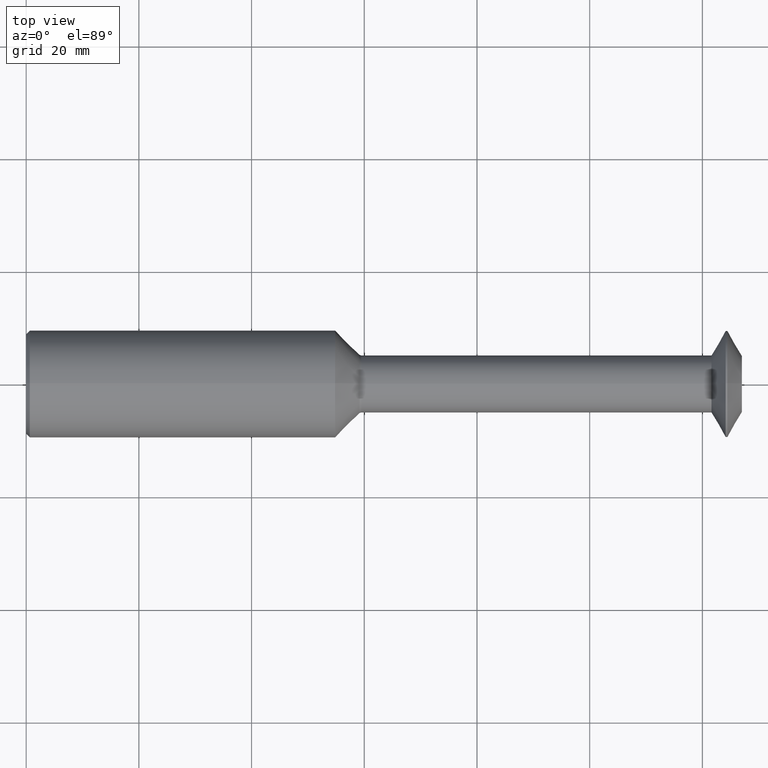
[diagram: clean part render]
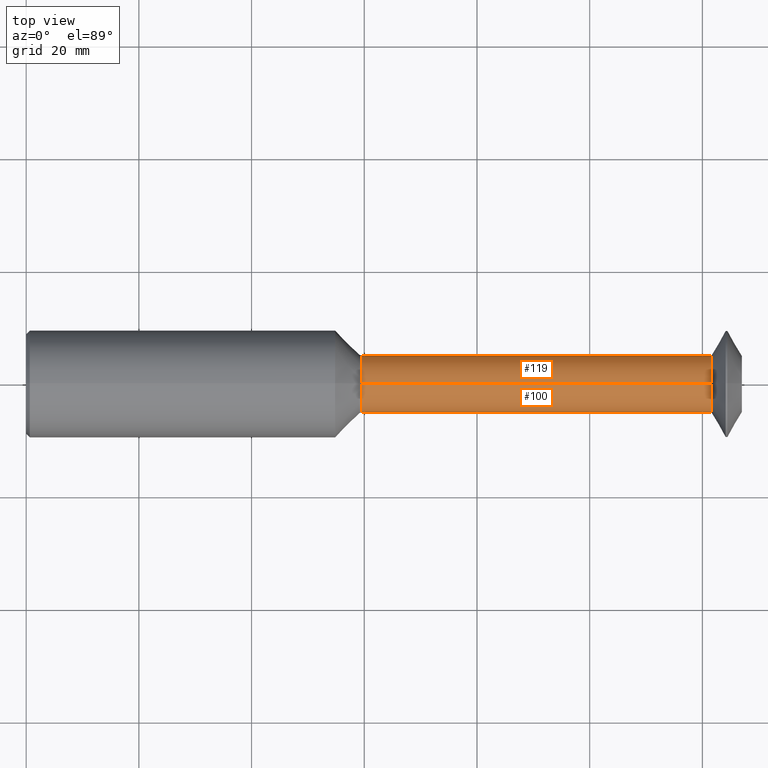
[diagram: same view with one multi-face feature highlighted, each face labeled with its STEP entity id]
A machine part, top view. The highlighted faces form ONE feature: a constant-radius fillet chain: 2 tangent blend faces with common blend radius 5.08 mm. The faces share edges in the B-rep.
Their STEP definitions:
[1] entity #100 (Cylinder):
#4 = LINE ( 'NONE', #458, #77 ) ;
#20 = VERTEX_POINT ( 'NONE', #35 ) ;
#22 = VERTEX_POINT ( 'NONE', #138 ) ;
#25 = AXIS2_PLACEMENT_3D ( 'NONE', #55, #292, #349 ) ;
#27 = DIRECTION ( 'NONE',  ( -1.000000000000000000, -0.0000000000000000000, -0.0000000000000000000 ) ) ;
#35 = CARTESIAN_POINT ( 'NONE',  ( 2.343642054216297232, 0.0000000000000000000, 0.1999999999999989841 ) ) ;
#53 = CARTESIAN_POINT ( 'NONE',  ( 2.343642054216297232, 0.0000000000000000000, 0.0000000000000000000 ) ) ;
#55 = CARTESIAN_POINT ( 'NONE',  ( 0.0000000000000000000, 0.0000000000000000000, 0.0000000000000000000 ) ) ;
#77 = VECTOR ( 'NONE', #383, 39.37007874015748143 ) ;
#100 = ADVANCED_FACE ( 'NONE', ( #433 ), #369, .T. ) ;
#138 = CARTESIAN_POINT ( 'NONE',  ( 4.788295024926640941, 3.505551462559286787E-17, 0.1999999999999990952 ) ) ;
#139 = ORIENTED_EDGE ( 'NONE', *, *, #379, .F. ) ;
#164 = ORIENTED_EDGE ( 'NONE', *, *, #272, .T. ) ;
#187 = DIRECTION ( 'NONE',  ( -1.000000000000000000, -0.0000000000000000000, -0.0000000000000000000 ) ) ;
#192 = VECTOR ( 'NONE', #187, 39.37007874015748143 ) ;
#211 = LINE ( 'NONE', #332, #192 ) ;
#225 = EDGE_CURVE ( 'NONE', #248, #273, #211, .T. ) ;
#248 = VERTEX_POINT ( 'NONE', #260 ) ;
#260 = CARTESIAN_POINT ( 'NONE',  ( 4.788295024926640941, 0.0000000000000000000, -0.1999999999999990952 ) ) ;
#272 = EDGE_CURVE ( 'NONE', #22, #20, #4, .T. ) ;
#273 = VERTEX_POINT ( 'NONE', #420 ) ;
#289 = EDGE_LOOP ( 'NONE', ( #337, #485, #164, #139 ) ) ;
#292 = DIRECTION ( 'NONE',  ( -1.000000000000000000, -0.0000000000000000000, -0.0000000000000000000 ) ) ;
#297 = AXIS2_PLACEMENT_3D ( 'NONE', #430, #434, #423 ) ;
#332 = CARTESIAN_POINT ( 'NONE',  ( 0.0000000000000000000, 2.449293598294694520E-17, -0.1999999999999990397 ) ) ;
#337 = ORIENTED_EDGE ( 'NONE', *, *, #225, .F. ) ;
#338 = EDGE_CURVE ( 'NONE', #248, #22, #358, .T. ) ;
#348 = DIRECTION ( 'NONE',  ( 0.0000000000000000000, 0.0000000000000000000, 1.000000000000000000 ) ) ;
#349 = DIRECTION ( 'NONE',  ( 0.0000000000000000000, 0.0000000000000000000, 1.000000000000000000 ) ) ;
#358 = CIRCLE ( 'NONE', #297, 0.1999999999999990952 ) ;
#369 = CYLINDRICAL_SURFACE ( 'NONE', #25, 0.1999999999999990397 ) ;
#376 = CIRCLE ( 'NONE', #496, 0.1999999999999989841 ) ;
#379 = EDGE_CURVE ( 'NONE', #273, #20, #376, .T. ) ;
#383 = DIRECTION ( 'NONE',  ( -1.000000000000000000, -0.0000000000000000000, -0.0000000000000000000 ) ) ;
#420 = CARTESIAN_POINT ( 'NONE',  ( 2.343642054216297232, 2.449293598294694212E-17, -0.1999999999999989841 ) ) ;
#423 = DIRECTION ( 'NONE',  ( 0.0000000000000000000, 0.0000000000000000000, 1.000000000000000000 ) ) ;
#430 = CARTESIAN_POINT ( 'NONE',  ( 4.788295024926640941, 0.0000000000000000000, 0.0000000000000000000 ) ) ;
#433 = FACE_OUTER_BOUND ( 'NONE', #289, .T. ) ;
#434 = DIRECTION ( 'NONE',  ( -1.000000000000000000, -0.0000000000000000000, -0.0000000000000000000 ) ) ;
#458 = CARTESIAN_POINT ( 'NONE',  ( 0.0000000000000000000, 0.0000000000000000000, 0.1999999999999990397 ) ) ;
#485 = ORIENTED_EDGE ( 'NONE', *, *, #338, .T. ) ;
#496 = AXIS2_PLACEMENT_3D ( 'NONE', #53, #27, #348 ) ;
[2] entity #119 (Cylinder):
#4 = LINE ( 'NONE', #458, #77 ) ;
#20 = VERTEX_POINT ( 'NONE', #35 ) ;
#22 = VERTEX_POINT ( 'NONE', #138 ) ;
#35 = CARTESIAN_POINT ( 'NONE',  ( 2.343642054216297232, 0.0000000000000000000, 0.1999999999999989841 ) ) ;
#66 = DIRECTION ( 'NONE',  ( 0.0000000000000000000, 0.0000000000000000000, 1.000000000000000000 ) ) ;
#73 = ORIENTED_EDGE ( 'NONE', *, *, #272, .F. ) ;
#77 = VECTOR ( 'NONE', #383, 39.37007874015748143 ) ;
#86 = FACE_OUTER_BOUND ( 'NONE', #328, .T. ) ;
#118 = CARTESIAN_POINT ( 'NONE',  ( 0.0000000000000000000, 0.0000000000000000000, 0.0000000000000000000 ) ) ;
#119 = ADVANCED_FACE ( 'NONE', ( #86 ), #371, .T. ) ;
#127 = DIRECTION ( 'NONE',  ( 0.0000000000000000000, 0.0000000000000000000, 1.000000000000000000 ) ) ;
#133 = DIRECTION ( 'NONE',  ( -1.000000000000000000, -0.0000000000000000000, -0.0000000000000000000 ) ) ;
#138 = CARTESIAN_POINT ( 'NONE',  ( 4.788295024926640941, 3.505551462559286787E-17, 0.1999999999999990952 ) ) ;
#149 = DIRECTION ( 'NONE',  ( -1.000000000000000000, -0.0000000000000000000, -0.0000000000000000000 ) ) ;
#167 = ORIENTED_EDGE ( 'NONE', *, *, #336, .F. ) ;
#168 = DIRECTION ( 'NONE',  ( -1.000000000000000000, -0.0000000000000000000, -0.0000000000000000000 ) ) ;
#170 = AXIS2_PLACEMENT_3D ( 'NONE', #118, #133, #66 ) ;
#187 = DIRECTION ( 'NONE',  ( -1.000000000000000000, -0.0000000000000000000, -0.0000000000000000000 ) ) ;
#192 = VECTOR ( 'NONE', #187, 39.37007874015748143 ) ;
#211 = LINE ( 'NONE', #332, #192 ) ;
#214 = CARTESIAN_POINT ( 'NONE',  ( 4.788295024926640941, 0.0000000000000000000, 0.0000000000000000000 ) ) ;
#221 = ORIENTED_EDGE ( 'NONE', *, *, #225, .T. ) ;
#225 = EDGE_CURVE ( 'NONE', #248, #273, #211, .T. ) ;
#230 = DIRECTION ( 'NONE',  ( 0.0000000000000000000, 0.0000000000000000000, 1.000000000000000000 ) ) ;
#239 = CIRCLE ( 'NONE', #287, 0.1999999999999989841 ) ;
#248 = VERTEX_POINT ( 'NONE', #260 ) ;
#260 = CARTESIAN_POINT ( 'NONE',  ( 4.788295024926640941, 0.0000000000000000000, -0.1999999999999990952 ) ) ;
#272 = EDGE_CURVE ( 'NONE', #22, #20, #4, .T. ) ;
#273 = VERTEX_POINT ( 'NONE', #420 ) ;
#280 = CIRCLE ( 'NONE', #357, 0.1999999999999990952 ) ;
#287 = AXIS2_PLACEMENT_3D ( 'NONE', #468, #149, #127 ) ;
#328 = EDGE_LOOP ( 'NONE', ( #469, #221, #167, #73 ) ) ;
#332 = CARTESIAN_POINT ( 'NONE',  ( 0.0000000000000000000, 2.449293598294694520E-17, -0.1999999999999990397 ) ) ;
#336 = EDGE_CURVE ( 'NONE', #20, #273, #239, .T. ) ;
#357 = AXIS2_PLACEMENT_3D ( 'NONE', #214, #168, #230 ) ;
#371 = CYLINDRICAL_SURFACE ( 'NONE', #170, 0.1999999999999990397 ) ;
#383 = DIRECTION ( 'NONE',  ( -1.000000000000000000, -0.0000000000000000000, -0.0000000000000000000 ) ) ;
#410 = EDGE_CURVE ( 'NONE', #22, #248, #280, .T. ) ;
#420 = CARTESIAN_POINT ( 'NONE',  ( 2.343642054216297232, 2.449293598294694212E-17, -0.1999999999999989841 ) ) ;
#458 = CARTESIAN_POINT ( 'NONE',  ( 0.0000000000000000000, 0.0000000000000000000, 0.1999999999999990397 ) ) ;
#468 = CARTESIAN_POINT ( 'NONE',  ( 2.343642054216297232, 0.0000000000000000000, 0.0000000000000000000 ) ) ;
#469 = ORIENTED_EDGE ( 'NONE', *, *, #410, .T. ) ;